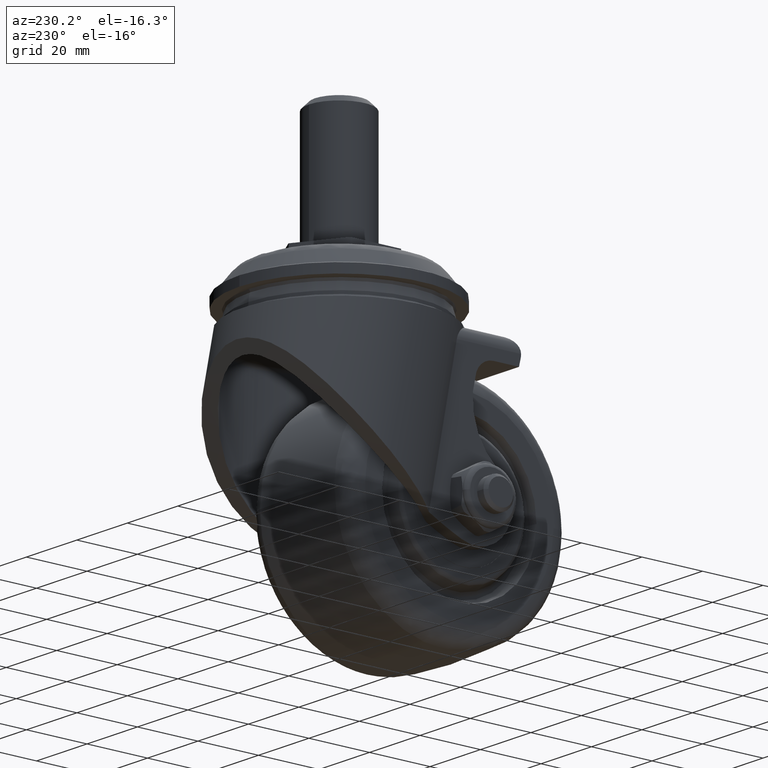
[diagram: clean part render]
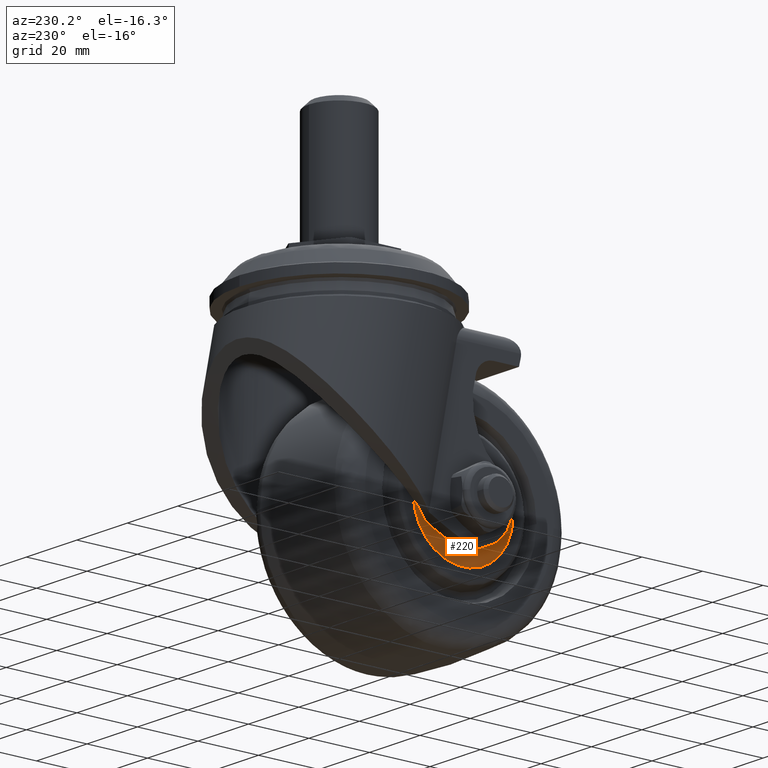
[diagram: same view with one face highlighted and labeled with its STEP entity id]
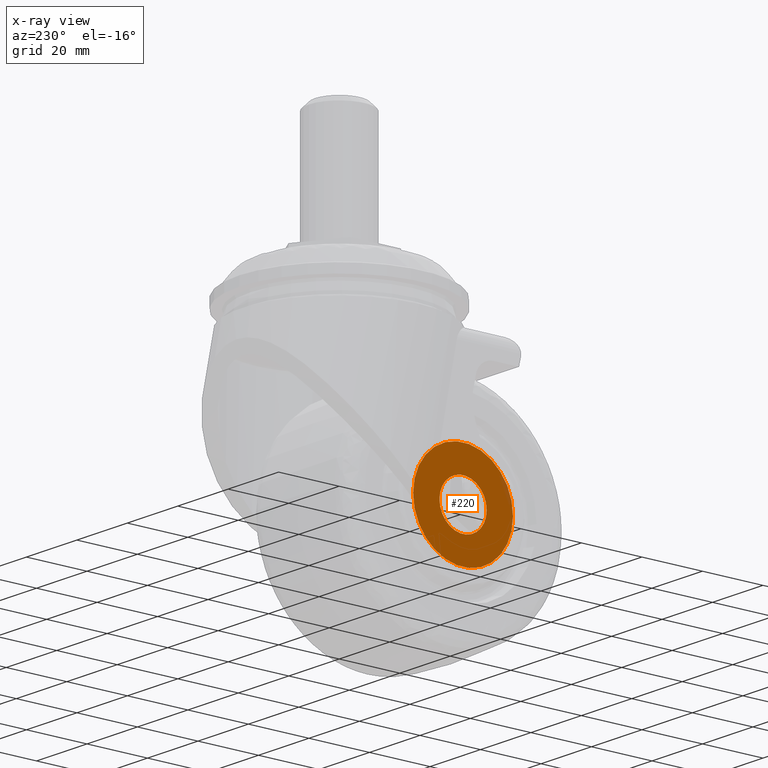
[diagram: x-ray of the same camera — body ghosted, the highlighted face saturated]
A machine part, auxiliary view. The second image highlights one B-rep face of the part: STEP entity #220.
The next image is the same camera in x-ray: the body ghosted, the highlighted face saturated — about 1% of this face is hidden behind the body in this view.
In plain terms, the highlighted planar face has unit normal (-1, 0, 0).
Its self-contained STEP definition (entity closure, byte-faithful):
#220=ADVANCED_FACE('',(#1383,#1384),#1382,.T.);
#1382=PLANE('',#2847);
#1383=FACE_OUTER_BOUND('',#2848,.T.);
#1384=FACE_BOUND('',#2849,.T.);
#2844=CARTESIAN_POINT('',(-2.15000000000E+01,-3.42946059899E+01,-2.14500000000E+01));
#2845=DIRECTION('',(-1.00000000000E+00,0.00000000000E+00,0.00000000000E+00));
#2846=DIRECTION('',(0.00000000000E+00,0.00000000000E+00,1.00000000000E+00));
#2847=AXIS2_PLACEMENT_3D('',#2844,#2845,#2846);
#2848=EDGE_LOOP('',(#4120,#4121));
#2849=EDGE_LOOP('',(#4122,#4123));
#4120=ORIENTED_EDGE('',*,*,#4627,.F.);
#4121=ORIENTED_EDGE('',*,*,#4628,.F.);
#4122=ORIENTED_EDGE('',*,*,#4629,.T.);
#4123=ORIENTED_EDGE('',*,*,#4630,.T.);
#4627=EDGE_CURVE('',#6557,#6558,#6559,.T.);
#4628=EDGE_CURVE('',#6558,#6557,#6565,.T.);
#4629=EDGE_CURVE('',#6571,#6572,#6573,.T.);
#4630=EDGE_CURVE('',#6572,#6571,#6579,.T.);
#6557=VERTEX_POINT('',#8617);
#6558=VERTEX_POINT('',#8618);
#6559=CIRCLE('',#8622,1.65000000000E+01);
#6565=CIRCLE('',#8626,1.65000000000E+01);
#6571=VERTEX_POINT('',#8627);
#6572=VERTEX_POINT('',#8628);
#6573=CIRCLE('',#8632,7.80000000000E+00);
#6579=CIRCLE('',#8636,7.80000000000E+00);
#8617=CARTESIAN_POINT('',(-2.15000000000E+01,1.18423789293E-15,1.65000000000E+01));
#8618=CARTESIAN_POINT('',(-2.15000000000E+01,0.00000000000E+00,-1.65000000000E+01));
#8619=CARTESIAN_POINT('',(-2.15000000000E+01,0.00000000000E+00,0.00000000000E+00));
#8620=DIRECTION('',(1.00000000000E+00,0.00000000000E+00,0.00000000000E+00));
#8621=DIRECTION('',(0.00000000000E+00,-1.22460635382E-16,-1.00000000000E+00));
#8622=AXIS2_PLACEMENT_3D('',#8619,#8620,#8621);
#8623=CARTESIAN_POINT('',(-2.15000000000E+01,0.00000000000E+00,0.00000000000E+00));
#8624=DIRECTION('',(1.00000000000E+00,0.00000000000E+00,0.00000000000E+00));
#8625=DIRECTION('',(0.00000000000E+00,-1.22460635382E-16,-1.00000000000E+00));
#8626=AXIS2_PLACEMENT_3D('',#8623,#8624,#8625);
#8627=CARTESIAN_POINT('',(-2.15000000000E+01,0.00000000000E+00,-7.80000000000E+00));
#8628=CARTESIAN_POINT('',(-2.15000000000E+01,8.88178419700E-16,7.80000000000E+00));
#8629=CARTESIAN_POINT('',(-2.15000000000E+01,0.00000000000E+00,0.00000000000E+00));
#8630=DIRECTION('',(1.00000000000E+00,0.00000000000E+00,0.00000000000E+00));
#8631=DIRECTION('',(0.00000000000E+00,-1.22460635382E-16,-1.00000000000E+00));
#8632=AXIS2_PLACEMENT_3D('',#8629,#8630,#8631);
#8633=CARTESIAN_POINT('',(-2.15000000000E+01,0.00000000000E+00,0.00000000000E+00));
#8634=DIRECTION('',(1.00000000000E+00,0.00000000000E+00,0.00000000000E+00));
#8635=DIRECTION('',(0.00000000000E+00,-1.22460635382E-16,-1.00000000000E+00));
#8636=AXIS2_PLACEMENT_3D('',#8633,#8634,#8635);